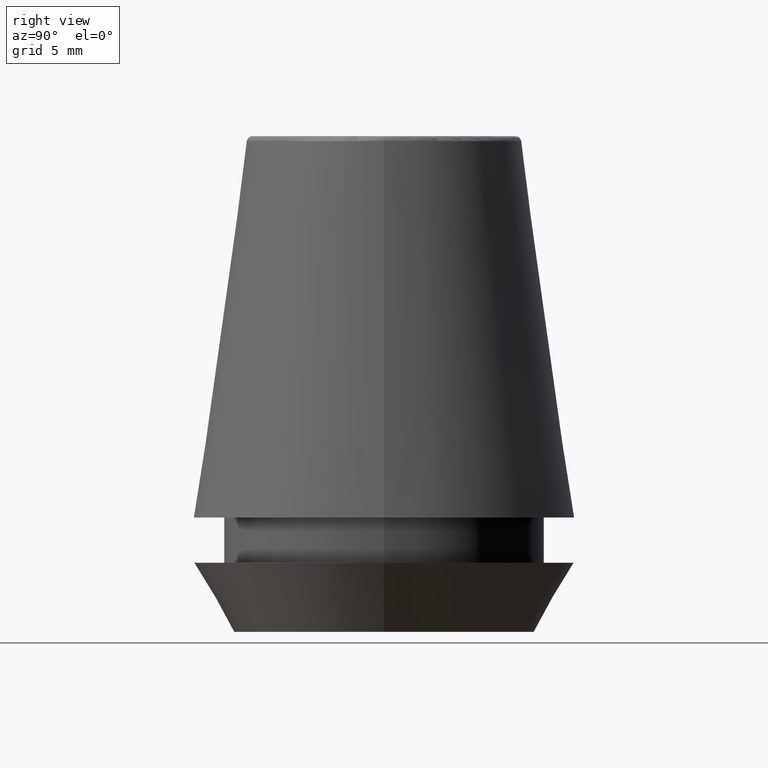
[diagram: clean part render]
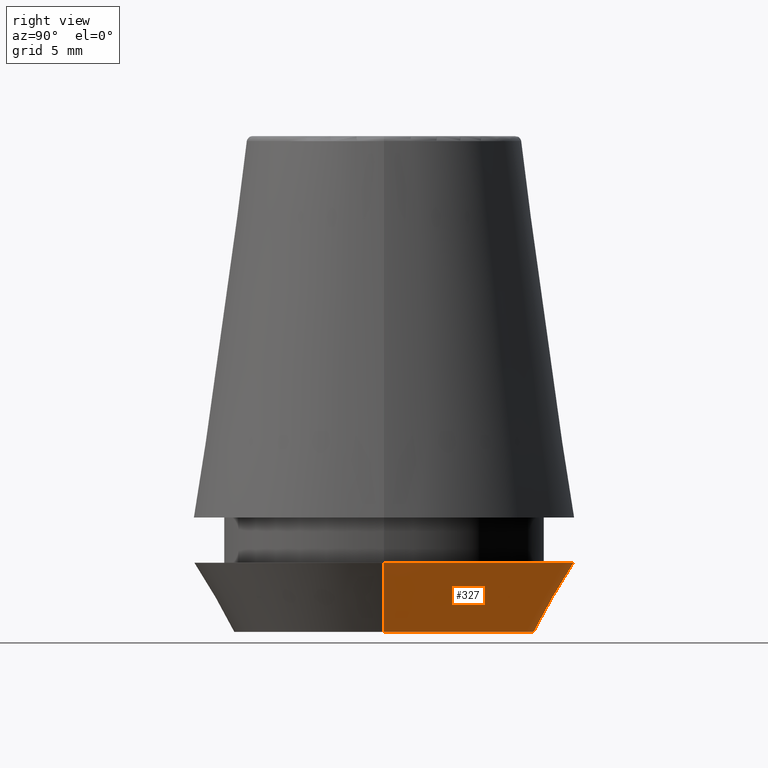
[diagram: same view with one face highlighted and labeled with its STEP entity id]
A machine part, right view. The second image highlights one B-rep face of the part: STEP entity #327.
In plain terms, the highlighted conical surface has half-angle 30 deg.
Its self-contained STEP definition (entity closure, byte-faithful):
#21 = AXIS2_PLACEMENT_3D ( 'NONE', #375, #45, #90 ) ;
#25 = LINE ( 'NONE', #301, #80 ) ;
#45 = DIRECTION ( 'NONE',  ( -0.0000000000000000000, -0.0000000000000000000, 1.000000000000000000 ) ) ;
#48 = DIRECTION ( 'NONE',  ( -0.0000000000000000000, -0.0000000000000000000, 1.000000000000000000 ) ) ;
#49 = CARTESIAN_POINT ( 'NONE',  ( -10.26217568973925200, 1.424397449982127500E-015, 0.0000000000000000000 ) ) ;
#59 = CIRCLE ( 'NONE', #21, 10.26217568973925200 ) ;
#80 = VECTOR ( 'NONE', #126, 1000.000000000000200 ) ;
#83 = CARTESIAN_POINT ( 'NONE',  ( 0.0000000000000000000, 0.0000000000000000000, 0.0000000000000000000 ) ) ;
#90 = DIRECTION ( 'NONE',  ( 1.000000000000000000, 0.0000000000000000000, 0.0000000000000000000 ) ) ;
#99 = VERTEX_POINT ( 'NONE', #49 ) ;
#105 = DIRECTION ( 'NONE',  ( -0.4999999999999957800, 6.123233995736714300E-017, 0.8660254037844410400 ) ) ;
#106 = CARTESIAN_POINT ( 'NONE',  ( -10.26217568973925200, 1.256754061072695800E-015, 0.0000000000000000000 ) ) ;
#110 = EDGE_LOOP ( 'NONE', ( #215, #260, #119, #330 ) ) ;
#119 = ORIENTED_EDGE ( 'NONE', *, *, #262, .F. ) ;
#126 = DIRECTION ( 'NONE',  ( 0.4999999999999957800, 0.0000000000000000000, 0.8660254037844410400 ) ) ;
#140 = CONICAL_SURFACE ( 'NONE', #227, 10.26217568973925200, 0.5235987755982940400 ) ;
#143 = CARTESIAN_POINT ( 'NONE',  ( 10.26217568973925200, 0.0000000000000000000, 0.0000000000000000000 ) ) ;
#151 = VECTOR ( 'NONE', #105, 1000.000000000000200 ) ;
#177 = VERTEX_POINT ( 'NONE', #143 ) ;
#180 = CARTESIAN_POINT ( 'NONE',  ( 0.0000000000000000000, 0.0000000000000000000, 4.742050807568884500 ) ) ;
#214 = FACE_OUTER_BOUND ( 'NONE', #110, .T. ) ;
#215 = ORIENTED_EDGE ( 'NONE', *, *, #252, .T. ) ;
#227 = AXIS2_PLACEMENT_3D ( 'NONE', #83, #48, #306 ) ;
#242 = CARTESIAN_POINT ( 'NONE',  ( -13.00000000000000000, 1.592040838891559100E-015, 4.742050807568884500 ) ) ;
#252 = EDGE_CURVE ( 'NONE', #177, #99, #59, .T. ) ;
#255 = EDGE_CURVE ( 'NONE', #99, #281, #324, .T. ) ;
#258 = AXIS2_PLACEMENT_3D ( 'NONE', #180, #361, #279 ) ;
#260 = ORIENTED_EDGE ( 'NONE', *, *, #255, .T. ) ;
#262 = EDGE_CURVE ( 'NONE', #387, #281, #311, .T. ) ;
#264 = EDGE_CURVE ( 'NONE', #177, #387, #25, .T. ) ;
#279 = DIRECTION ( 'NONE',  ( 1.000000000000000000, 0.0000000000000000000, 0.0000000000000000000 ) ) ;
#281 = VERTEX_POINT ( 'NONE', #242 ) ;
#301 = CARTESIAN_POINT ( 'NONE',  ( 10.26217568973925200, 0.0000000000000000000, 0.0000000000000000000 ) ) ;
#306 = DIRECTION ( 'NONE',  ( 1.000000000000000000, 0.0000000000000000000, 0.0000000000000000000 ) ) ;
#311 = CIRCLE ( 'NONE', #258, 13.00000000000000000 ) ;
#324 = LINE ( 'NONE', #106, #151 ) ;
#327 = ADVANCED_FACE ( 'NONE', ( #214 ), #140, .T. ) ;
#330 = ORIENTED_EDGE ( 'NONE', *, *, #264, .F. ) ;
#359 = CARTESIAN_POINT ( 'NONE',  ( 13.00000000000000000, 0.0000000000000000000, 4.742050807568884500 ) ) ;
#361 = DIRECTION ( 'NONE',  ( -0.0000000000000000000, -0.0000000000000000000, 1.000000000000000000 ) ) ;
#375 = CARTESIAN_POINT ( 'NONE',  ( 0.0000000000000000000, 0.0000000000000000000, 0.0000000000000000000 ) ) ;
#387 = VERTEX_POINT ( 'NONE', #359 ) ;